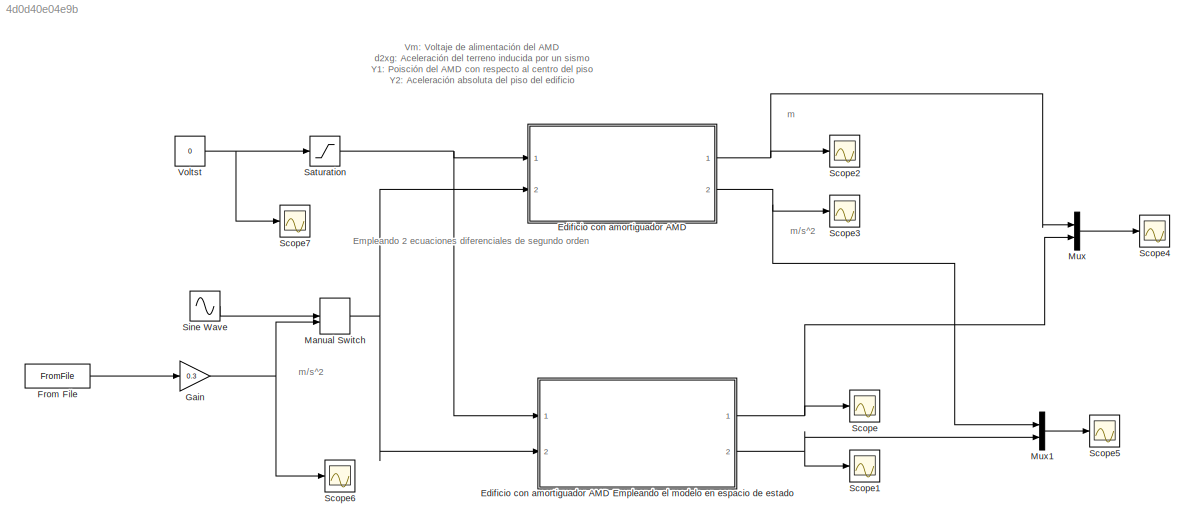
MODEL slx_4d0d40e04e9b
KIND model
CONFIG AbsTol = auto
CONFIG FixedStep = 0.001
CONFIG MaxStep = auto
CONFIG MinStep = auto
CONFIG RelTol = 1e-3
CONFIG SampleTimeConstraint = Unconstrained
CONFIG Solver = ode5
CONFIG SolverMode = Auto
CONFIG SolverName = ode5
CONFIG StartTime = 0.0
CONFIG StopTime = 18
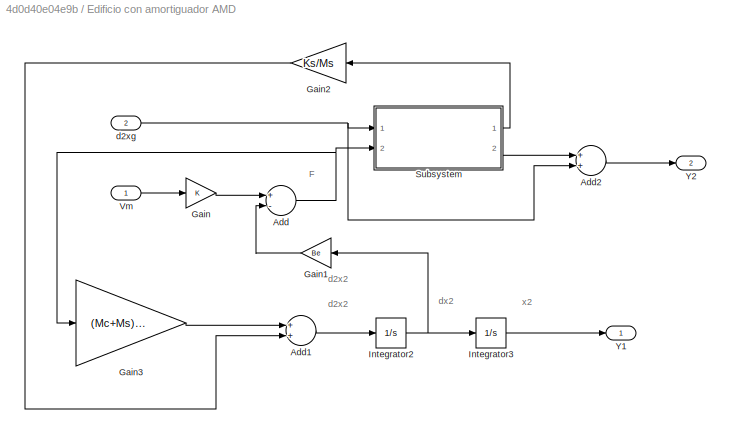
BLOCK [SubSystem] Edificio con amortiguador AMD
  Ports = [2, 2]
  RequestExecContextInheritance = off
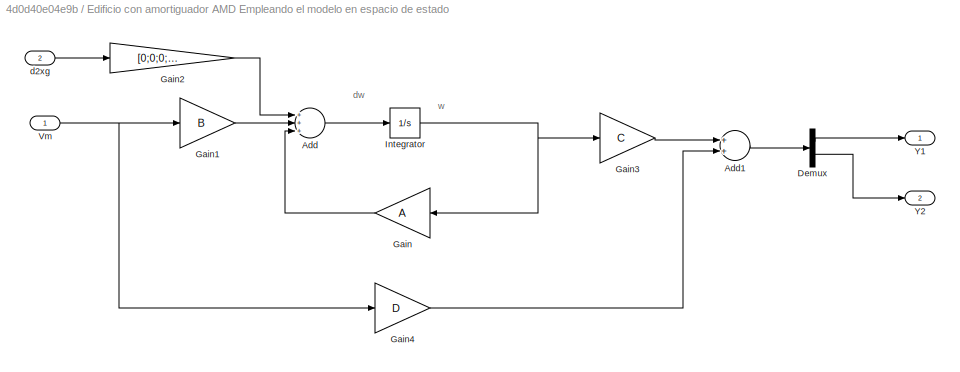
BLOCK [SubSystem] Edificio con amortiguador AMD Empleando el modelo en espacio de estado
  Ports = [2, 2]
  RequestExecContextInheritance = off
BLOCK [Sum] Edificio con amortiguador AMD Empleando el modelo en espacio de estado/Add
  InputSameDT = off
  Inputs = +++
  OutDataTypeStr = Inherit: Inherit via internal rule
  Ports = [3, 1]
  SaturateOnIntegerOverflow = off
BLOCK [Sum] Edificio con amortiguador AMD Empleando el modelo en espacio de estado/Add1
  InputSameDT = off
  OutDataTypeStr = Inherit: Inherit via internal rule
  Ports = [2, 1]
  SaturateOnIntegerOverflow = off
BLOCK [Demux] Edificio con amortiguador AMD Empleando el modelo en espacio de estado/Demux
  DisplayOption = bar
  Outputs = 2
  Ports = [1, 2]
BLOCK [Gain] Edificio con amortiguador AMD Empleando el modelo en espacio de estado/Gain
  Gain = A
  Multiplication = Matrix(K*u)
  OutDataTypeStr = Inherit: Inherit via internal rule
  ParamDataTypeStr = Inherit: Inherit via internal rule
  SaturateOnIntegerOverflow = off
BLOCK [Gain] Edificio con amortiguador AMD Empleando el modelo en espacio de estado/Gain1
  Gain = B
  Multiplication = Matrix(K*u)
  OutDataTypeStr = Inherit: Inherit via internal rule
  ParamDataTypeStr = Inherit: Inherit via internal rule
  SaturateOnIntegerOverflow = off
BLOCK [Gain] Edificio con amortiguador AMD Empleando el modelo en espacio de estado/Gain2
  Gain = [0;0;0;-1]
  Multiplication = Matrix(K*u)
  OutDataTypeStr = Inherit: Inherit via internal rule
  ParamDataTypeStr = Inherit: Inherit via internal rule
  SaturateOnIntegerOverflow = off
BLOCK [Gain] Edificio con amortiguador AMD Empleando el modelo en espacio de estado/Gain3
  Gain = C
  Multiplication = Matrix(K*u)
  OutDataTypeStr = Inherit: Inherit via internal rule
  ParamDataTypeStr = Inherit: Inherit via internal rule
  SaturateOnIntegerOverflow = off
BLOCK [Gain] Edificio con amortiguador AMD Empleando el modelo en espacio de estado/Gain4
  Gain = D
  Multiplication = Matrix(K*u)
  OutDataTypeStr = Inherit: Inherit via internal rule
  ParamDataTypeStr = Inherit: Inherit via internal rule
  SaturateOnIntegerOverflow = off
BLOCK [Integrator] Edificio con amortiguador AMD Empleando el modelo en espacio de estado/Integrator
  Ports = [1, 1]
BLOCK [Inport] Edificio con amortiguador AMD Empleando el modelo en espacio de estado/Vm
  IconDisplay = Port number
BLOCK [Outport] Edificio con amortiguador AMD Empleando el modelo en espacio de estado/Y1
  IconDisplay = Port number
BLOCK [Outport] Edificio con amortiguador AMD Empleando el modelo en espacio de estado/Y2
  IconDisplay = Port number
  Port = 2
BLOCK [Inport] Edificio con amortiguador AMD Empleando el modelo en espacio de estado/d2xg
  IconDisplay = Port number
  Port = 2
BLOCK [Sum] Edificio con amortiguador AMD/Add
  InputSameDT = off
  Inputs = +-
  OutDataTypeStr = Inherit: Inherit via internal rule
  Ports = [2, 1]
  SaturateOnIntegerOverflow = off
BLOCK [Sum] Edificio con amortiguador AMD/Add1
  InputSameDT = off
  OutDataTypeStr = Inherit: Inherit via internal rule
  Ports = [2, 1]
  SaturateOnIntegerOverflow = off
BLOCK [Sum] Edificio con amortiguador AMD/Add2
  InputSameDT = off
  OutDataTypeStr = Inherit: Inherit via internal rule
  Ports = [2, 1]
  SaturateOnIntegerOverflow = off
BLOCK [Gain] Edificio con amortiguador AMD/Gain
  Gain = K
  OutDataTypeStr = Inherit: Inherit via internal rule
  ParamDataTypeStr = Inherit: Inherit via internal rule
  SaturateOnIntegerOverflow = off
BLOCK [Gain] Edificio con amortiguador AMD/Gain1
  Gain = Be
  OutDataTypeStr = Inherit: Inherit via internal rule
  ParamDataTypeStr = Inherit: Inherit via internal rule
  SaturateOnIntegerOverflow = off
BLOCK [Gain] Edificio con amortiguador AMD/Gain2
  Gain = Ks/Ms
  OutDataTypeStr = Inherit: Inherit via internal rule
  ParamDataTypeStr = Inherit: Inherit via internal rule
  SaturateOnIntegerOverflow = off
BLOCK [Gain] Edificio con amortiguador AMD/Gain3
  Gain = (Mc+Ms)/(Mc*Ms)
  OutDataTypeStr = Inherit: Inherit via internal rule
  ParamDataTypeStr = Inherit: Inherit via internal rule
  SaturateOnIntegerOverflow = off
BLOCK [Integrator] Edificio con amortiguador AMD/Integrator2
  Ports = [1, 1]
BLOCK [Integrator] Edificio con amortiguador AMD/Integrator3
  Ports = [1, 1]
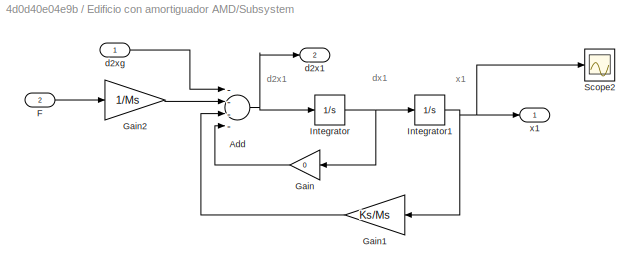
BLOCK [SubSystem] Edificio con amortiguador AMD/Subsystem
  Ports = [2, 2]
  RequestExecContextInheritance = off
BLOCK [Sum] Edificio con amortiguador AMD/Subsystem/Add
  InputSameDT = off
  Inputs = ----
  OutDataTypeStr = Inherit: Inherit via internal rule
  Ports = [4, 1]
  SaturateOnIntegerOverflow = off
BLOCK [Inport] Edificio con amortiguador AMD/Subsystem/F
  IconDisplay = Port number
  Port = 2
BLOCK [Gain] Edificio con amortiguador AMD/Subsystem/Gain
  Gain = 0
  OutDataTypeStr = Inherit: Inherit via internal rule
  ParamDataTypeStr = Inherit: Inherit via internal rule
  SaturateOnIntegerOverflow = off
BLOCK [Gain] Edificio con amortiguador AMD/Subsystem/Gain1
  Gain = Ks/Ms
  OutDataTypeStr = Inherit: Inherit via internal rule
  ParamDataTypeStr = Inherit: Inherit via internal rule
  SaturateOnIntegerOverflow = off
BLOCK [Gain] Edificio con amortiguador AMD/Subsystem/Gain2
  Gain = 1/Ms
  OutDataTypeStr = Inherit: Inherit via internal rule
  ParamDataTypeStr = Inherit: Inherit via internal rule
  SaturateOnIntegerOverflow = off
BLOCK [Integrator] Edificio con amortiguador AMD/Subsystem/Integrator
  Ports = [1, 1]
BLOCK [Integrator] Edificio con amortiguador AMD/Subsystem/Integrator1
  Ports = [1, 1]
BLOCK [Scope] Edificio con amortiguador AMD/Subsystem/Scope2
  Floating = off
  LimitDataPoints = off
  NumInputPorts = 1
  Ports = [1]
  SaveName = ScopeData8
BLOCK [Outport] Edificio con amortiguador AMD/Subsystem/d2x1
  IconDisplay = Port number
  Port = 2
BLOCK [Inport] Edificio con amortiguador AMD/Subsystem/d2xg
  IconDisplay = Port number
BLOCK [Outport] Edificio con amortiguador AMD/Subsystem/x1
  IconDisplay = Port number
BLOCK [Inport] Edificio con amortiguador AMD/Vm
  IconDisplay = Port number
BLOCK [Outport] Edificio con amortiguador AMD/Y1
  IconDisplay = Port number
BLOCK [Outport] Edificio con amortiguador AMD/Y2
  IconDisplay = Port number
  Port = 2
BLOCK [Inport] Edificio con amortiguador AMD/d2xg
  IconDisplay = Port number
  Port = 2
BLOCK [FromFile] From File
  FileName = sismo_mex85.mat
  SampleTime = 0.001
BLOCK [Gain] Gain
  Gain = 0.3
  OutDataTypeStr = Inherit: Inherit via internal rule
  ParamDataTypeStr = Inherit: Inherit via internal rule
  SaturateOnIntegerOverflow = off
BLOCK [ManualSwitch] Manual Switch
  CurrentSetting = 0
BLOCK [Mux] Mux
  DisplayOption = bar
  Inputs = 2
  Ports = [2, 1]
BLOCK [Mux] Mux1
  DisplayOption = bar
  Inputs = 2
  Ports = [2, 1]
BLOCK [Saturate] Saturation
  InputPortMap = u0
  LowerLimit = -10
  Ports = [1, 1]
  UpperLimit = 10
BLOCK [Scope] Scope
  Floating = off
  LimitDataPoints = off
  NumInputPorts = 1
  Ports = [1]
BLOCK [Scope] Scope1
  Floating = off
  LimitDataPoints = off
  NumInputPorts = 1
  Ports = [1]
  SaveName = ScopeData1
BLOCK [Scope] Scope2
  Floating = off
  LimitDataPoints = off
  NumInputPorts = 1
  Ports = [1]
  SaveName = ScopeData2
BLOCK [Scope] Scope3
  Floating = off
  LimitDataPoints = off
  NumInputPorts = 1
  Ports = [1]
  SaveName = ScopeData3
BLOCK [Scope] Scope4
  Floating = off
  LimitDataPoints = off
  NumInputPorts = 1
  Ports = [1]
  SaveName = ScopeData4
BLOCK [Scope] Scope5
  Floating = off
  LimitDataPoints = off
  NumInputPorts = 1
  Ports = [1]
  SaveName = ScopeData5
BLOCK [Scope] Scope6
  Floating = off
  LimitDataPoints = off
  NumInputPorts = 1
  Ports = [1]
  SaveName = ScopeData6
BLOCK [Scope] Scope7
  Floating = off
  LimitDataPoints = off
  NumInputPorts = 1
  Ports = [1]
  SaveName = ScopeData7
BLOCK [Sin] Sine Wave
  Ports = [0, 1]
  SampleTime = 0
BLOCK [Constant] Voltst
  Value = 0
ANNOTATION (root): Empleando 2 ecuaciones diferenciales de segundo orden
ANNOTATION (root): Vm: Voltaje de alimentación del AMD d2xg: Aceleración del terreno inducida por un sismo Y1: Poisción del AMD con respecto al centro del piso Y2: Aceleración absoluta del piso del edificio
ANNOTATION (root): m
ANNOTATION (root): m/s^2
ANNOTATION Edificio con amortiguador AMD: F
ANNOTATION Edificio con amortiguador AMD: d2x2
ANNOTATION Edificio con amortiguador AMD: dx2
ANNOTATION Edificio con amortiguador AMD: x2
ANNOTATION Edificio con amortiguador AMD Empleando el modelo en espacio de estado: dw
ANNOTATION Edificio con amortiguador AMD Empleando el modelo en espacio de estado: w
ANNOTATION Edificio con amortiguador AMD/Subsystem: d2x1
ANNOTATION Edificio con amortiguador AMD/Subsystem: dx1
ANNOTATION Edificio con amortiguador AMD/Subsystem: x1
LINE Edificio con amortiguador AMD Empleando el modelo en espacio de estado/Add1:1 -> Edificio con amortiguador AMD Empleando el modelo en espacio de estado/Demux:1
LINE Edificio con amortiguador AMD Empleando el modelo en espacio de estado/Add:1 -> Edificio con amortiguador AMD Empleando el modelo en espacio de estado/Integrator:1
LINE Edificio con amortiguador AMD Empleando el modelo en espacio de estado/Demux:1 -> Edificio con amortiguador AMD Empleando el modelo en espacio de estado/Y1:1
LINE Edificio con amortiguador AMD Empleando el modelo en espacio de estado/Demux:2 -> Edificio con amortiguador AMD Empleando el modelo en espacio de estado/Y2:1
LINE Edificio con amortiguador AMD Empleando el modelo en espacio de estado/Gain1:1 -> Edificio con amortiguador AMD Empleando el modelo en espacio de estado/Add:2
LINE Edificio con amortiguador AMD Empleando el modelo en espacio de estado/Gain2:1 -> Edificio con amortiguador AMD Empleando el modelo en espacio de estado/Add:1
LINE Edificio con amortiguador AMD Empleando el modelo en espacio de estado/Gain3:1 -> Edificio con amortiguador AMD Empleando el modelo en espacio de estado/Add1:1
LINE Edificio con amortiguador AMD Empleando el modelo en espacio de estado/Gain4:1 -> Edificio con amortiguador AMD Empleando el modelo en espacio de estado/Add1:2
LINE Edificio con amortiguador AMD Empleando el modelo en espacio de estado/Gain:1 -> Edificio con amortiguador AMD Empleando el modelo en espacio de estado/Add:3
NET Edificio con amortiguador AMD Empleando el modelo en espacio de estado/Integrator:1 -> Edificio con amortiguador AMD Empleando el modelo en espacio de estado/Gain3:1, Edificio con amortiguador AMD Empleando el modelo en espacio de estado/Gain:1
NET Edificio con amortiguador AMD Empleando el modelo en espacio de estado/Vm:1 -> Edificio con amortiguador AMD Empleando el modelo en espacio de estado/Gain1:1, Edificio con amortiguador AMD Empleando el modelo en espacio de estado/Gain4:1
LINE Edificio con amortiguador AMD Empleando el modelo en espacio de estado/d2xg:1 -> Edificio con amortiguador AMD Empleando el modelo en espacio de estado/Gain2:1
NET Edificio con amortiguador AMD Empleando el modelo en espacio de estado:1 -> Mux:2, Scope:1
NET Edificio con amortiguador AMD Empleando el modelo en espacio de estado:2 -> Mux1:2, Scope1:1
LINE Edificio con amortiguador AMD/Add1:1 -> Edificio con amortiguador AMD/Integrator2:1
LINE Edificio con amortiguador AMD/Add2:1 -> Edificio con amortiguador AMD/Y2:1
NET Edificio con amortiguador AMD/Add:1 -> Edificio con amortiguador AMD/Gain3:1, Edificio con amortiguador AMD/Subsystem:2
LINE Edificio con amortiguador AMD/Gain1:1 -> Edificio con amortiguador AMD/Add:2
LINE Edificio con amortiguador AMD/Gain2:1 -> Edificio con amortiguador AMD/Add1:2
LINE Edificio con amortiguador AMD/Gain3:1 -> Edificio con amortiguador AMD/Add1:1
LINE Edificio con amortiguador AMD/Gain:1 -> Edificio con amortiguador AMD/Add:1
NET Edificio con amortiguador AMD/Integrator2:1 -> Edificio con amortiguador AMD/Gain1:1, Edificio con amortiguador AMD/Integrator3:1
LINE Edificio con amortiguador AMD/Integrator3:1 -> Edificio con amortiguador AMD/Y1:1
NET Edificio con amortiguador AMD/Subsystem/Add:1 -> Edificio con amortiguador AMD/Subsystem/Integrator:1, Edificio con amortiguador AMD/Subsystem/d2x1:1
LINE Edificio con amortiguador AMD/Subsystem/F:1 -> Edificio con amortiguador AMD/Subsystem/Gain2:1
LINE Edificio con amortiguador AMD/Subsystem/Gain1:1 -> Edificio con amortiguador AMD/Subsystem/Add:3
LINE Edificio con amortiguador AMD/Subsystem/Gain2:1 -> Edificio con amortiguador AMD/Subsystem/Add:2
LINE Edificio con amortiguador AMD/Subsystem/Gain:1 -> Edificio con amortiguador AMD/Subsystem/Add:4
NET Edificio con amortiguador AMD/Subsystem/Integrator1:1 -> Edificio con amortiguador AMD/Subsystem/Gain1:1, Edificio con amortiguador AMD/Subsystem/Scope2:1, Edificio con amortiguador AMD/Subsystem/x1:1
NET Edificio con amortiguador AMD/Subsystem/Integrator:1 -> Edificio con amortiguador AMD/Subsystem/Gain:1, Edificio con amortiguador AMD/Subsystem/Integrator1:1
LINE Edificio con amortiguador AMD/Subsystem/d2xg:1 -> Edificio con amortiguador AMD/Subsystem/Add:1
LINE Edificio con amortiguador AMD/Subsystem:1 -> Edificio con amortiguador AMD/Gain2:1
LINE Edificio con amortiguador AMD/Subsystem:2 -> Edificio con amortiguador AMD/Add2:1
LINE Edificio con amortiguador AMD/Vm:1 -> Edificio con amortiguador AMD/Gain:1
NET Edificio con amortiguador AMD/d2xg:1 -> Edificio con amortiguador AMD/Add2:2, Edificio con amortiguador AMD/Subsystem:1
NET Edificio con amortiguador AMD:1 -> Mux:1, Scope2:1
NET Edificio con amortiguador AMD:2 -> Mux1:1, Scope3:1
LINE From File:1 -> Gain:1
NET Gain:1 -> Manual Switch:2, Scope6:1
NET Manual Switch:1 -> Edificio con amortiguador AMD Empleando el modelo en espacio de estado:2, Edificio con amortiguador AMD:2
LINE Mux1:1 -> Scope5:1
LINE Mux:1 -> Scope4:1
NET Saturation:1 -> Edificio con amortiguador AMD Empleando el modelo en espacio de estado:1, Edificio con amortiguador AMD:1
LINE Sine Wave:1 -> Manual Switch:1
NET Voltst:1 -> Saturation:1, Scope7:1
note: NET lines group one-source signal fan-out (src -> all destinations, sorted); 1:1 wires keep LINE
